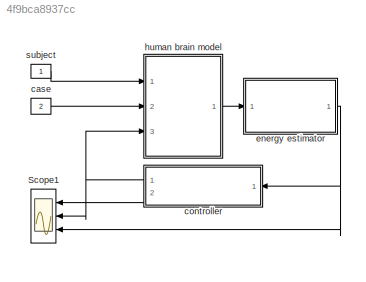
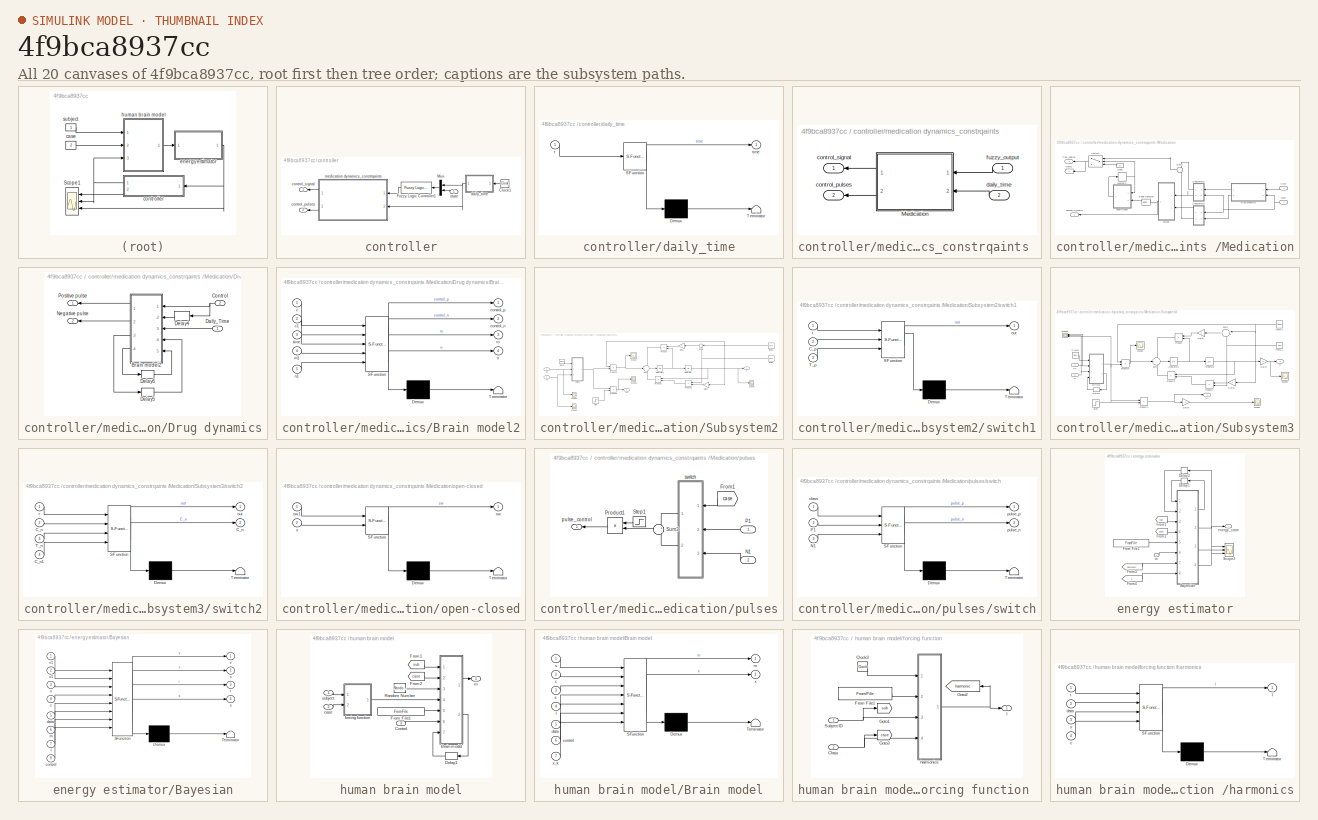
[diagram: thumbnail index - all 20 canvases of the model, root first then tree order]
MODEL slx_4f9bca8937cc
KIND model
CONFIG AbsTol = auto
CONFIG EnableMultiTasking = off
CONFIG FixedStep = 1
CONFIG MaxStep = auto
CONFIG MinStep = auto
CONFIG RelTol = 1e-3
CONFIG SampleTimeConstraint = Unconstrained
CONFIG Solver = FixedStepAuto
CONFIG SolverName = FixedStepAuto
CONFIG StartTime = 0.0
CONFIG StopTime = 7199
BLOCK [Scope] Scope1
  Floating = off
  NumInputPorts = 3
  Ports = [3]
  ScopeSpecificationString = Simulink.scopes.TimeScopeBlockCfg('CurrentConfiguration', extmgr.ConfigurationSet(extmgr.Configuration('Core','General UI',true),extmgr.Configuration('Core','Source UI',true),extmgr.Configuration('Sources','WiredSimulink',true,'DataLoggingVariableName','ScopeData2'),extmgr.Configuration('Visuals','Time Domain',true,'SerializedDisplays',{struct('MinYLimReal','-0.04405','MaxYLimReal','0.02395','YLab...<+3532ch>
BLOCK [Constant] case
  Value = 2
BLOCK [SubSystem] controller
  Ports = [1, 2]
  RequestExecContextInheritance = off
BLOCK [Clock] controller/Clock1
  Decimation = 10000
BLOCK [Reference] controller/Fuzzy Logic Controller1  REF=fuzblock/Fuzzy Logic   (lib defined in mdl_858b3b3e7478)
Controller
  Ports = [1, 1]
  SourceBlock = fuzblock/Fuzzy Logic \nController
  SourceProductBaseCode = FL
  SourceProductName = Fuzzy Logic Toolbox
  SourceType = Fuzzy Inference System
BLOCK [Mux] controller/Mux
  DisplayOption = bar
  Inputs = 2
  Ports = [2, 1]
BLOCK [Outport] controller/control_pulses
  IconDisplay = Port number
  Port = 2
  VectorParamsAs1DForOutWhenUnconnected = off
BLOCK [Outport] controller/control_signal
  IconDisplay = Port number
  VectorParamsAs1DForOutWhenUnconnected = off
BLOCK [SubSystem] controller/daily_time
  ErrorFcn = Stateflow.Translate.translate
  PermitHierarchicalResolution = ExplicitOnly
  Ports = [1, 1]
  RequestExecContextInheritance = off
  SFBlockType = MATLAB Function
  TreatAsAtomicUnit = on
BLOCK [Demux] controller/daily_time/ Demux 
  Outputs = 1
  Ports = [1, 1]
BLOCK [S-Function] controller/daily_time/ SFunction 
  EnableBusSupport = on
  FunctionName = sf_sfun
  PortCounts = [1 2]
  Ports = [1, 2]
  SFcnIsStateOwnerBlock = off
  SFunctionDeploymentMode = off
  Tag = Stateflow S-Function 15
BLOCK [Terminator] controller/daily_time/ Terminator 
BLOCK [Inport] controller/daily_time/t
  IconDisplay = Port number
BLOCK [Outport] controller/daily_time/time
  IconDisplay = Port number
  VectorParamsAs1DForOutWhenUnconnected = off
BLOCK [SubSystem] controller/medication dynamics_constrqaints 
  Ports = [2, 2]
  RequestExecContextInheritance = off
BLOCK [SubSystem] controller/medication dynamics_constrqaints /Medication
  Ports = [2, 2]
  RequestExecContextInheritance = off
BLOCK [SubSystem] controller/medication dynamics_constrqaints /Medication/Drug dynamics
  Ports = [2, 2]
  RequestExecContextInheritance = off
BLOCK [SubSystem] controller/medication dynamics_constrqaints /Medication/Drug dynamics/Brain model2
  ErrorFcn = Stateflow.Translate.translate
  PermitHierarchicalResolution = ExplicitOnly
  Ports = [5, 4]
  RequestExecContextInheritance = off
  SFBlockType = MATLAB Function
  TreatAsAtomicUnit = on
BLOCK [Demux] controller/medication dynamics_constrqaints /Medication/Drug dynamics/Brain model2/ Demux 
  Outputs = 1
  Ports = [1, 1]
BLOCK [S-Function] controller/medication dynamics_constrqaints /Medication/Drug dynamics/Brain model2/ SFunction 
  EnableBusSupport = on
  FunctionName = sf_sfun
  PortCounts = [5 5]
  Ports = [5, 5]
  SFcnIsStateOwnerBlock = off
  SFunctionDeploymentMode = off
  Tag = Stateflow S-Function 10
BLOCK [Terminator] controller/medication dynamics_constrqaints /Medication/Drug dynamics/Brain model2/ Terminator 
BLOCK [Inport] controller/medication dynamics_constrqaints /Medication/Drug dynamics/Brain model2/c
  IconDisplay = Port number
BLOCK [Inport] controller/medication dynamics_constrqaints /Medication/Drug dynamics/Brain model2/c1
  IconDisplay = Port number
  Port = 2
BLOCK [Outport] controller/medication dynamics_constrqaints /Medication/Drug dynamics/Brain model2/control_n
  IconDisplay = Port number
  Port = 2
BLOCK [Outport] controller/medication dynamics_constrqaints /Medication/Drug dynamics/Brain model2/control_p
  IconDisplay = Port number
BLOCK [Outport] controller/medication dynamics_constrqaints /Medication/Drug dynamics/Brain model2/m
  IconDisplay = Port number
  Port = 3
BLOCK [Inport] controller/medication dynamics_constrqaints /Medication/Drug dynamics/Brain model2/m1
  IconDisplay = Port number
  Port = 4
BLOCK [Outport] controller/medication dynamics_constrqaints /Medication/Drug dynamics/Brain model2/n
  IconDisplay = Port number
  Port = 4
BLOCK [Inport] controller/medication dynamics_constrqaints /Medication/Drug dynamics/Brain model2/n1
  IconDisplay = Port number
  Port = 5
BLOCK [Inport] controller/medication dynamics_constrqaints /Medication/Drug dynamics/Brain model2/time
  IconDisplay = Port number
  Port = 3
BLOCK [Inport] controller/medication dynamics_constrqaints /Medication/Drug dynamics/Control
  IconDisplay = Port number
  Port = 2
BLOCK [Inport] controller/medication dynamics_constrqaints /Medication/Drug dynamics/Daily_Time
  IconDisplay = Port number
BLOCK [Delay] controller/medication dynamics_constrqaints /Medication/Drug dynamics/Delay4
  DelayLength = 1
  InitialCondition = 0
  InputPortMap = u0
  Ports = [1, 1]
BLOCK [Delay] controller/medication dynamics_constrqaints /Medication/Drug dynamics/Delay5
  DelayLength = 1
  InitialCondition = 0
  InputPortMap = u0
  Ports = [1, 1]
BLOCK [Delay] controller/medication dynamics_constrqaints /Medication/Drug dynamics/Delay6
  DelayLength = 1
  InitialCondition = 0
  InputPortMap = u0
  Ports = [1, 1]
BLOCK [Outport] controller/medication dynamics_constrqaints /Medication/Drug dynamics/Negative pulse 
  IconDisplay = Port number
  Port = 2
  VectorParamsAs1DForOutWhenUnconnected = off
BLOCK [Outport] controller/medication dynamics_constrqaints /Medication/Drug dynamics/Positive pulse 
  IconDisplay = Port number
  VectorParamsAs1DForOutWhenUnconnected = off
BLOCK [Reference] controller/medication dynamics_constrqaints /Medication/Edge Detector  REF=powerlib_meascontrol/Logic/Edge Detector
  Ports = [1, 1]
  SourceBlock = powerlib_meascontrol/Logic/Edge Detector
  SourceProductBaseCode = PS
  SourceProductName = Simscape Electrical
  SourceType = Edge Detector
BLOCK [Goto] controller/medication dynamics_constrqaints /Medication/Goto1
  GotoTag = c
  TagVisibility = global
BLOCK [Memory] controller/medication dynamics_constrqaints /Medication/Memory1
BLOCK [Constant] controller/medication dynamics_constrqaints /Medication/Open
  Value = 0
BLOCK [SubSystem] controller/medication dynamics_constrqaints /Medication/Subsystem2
  Ports = [2, 2]
  RequestExecContextInheritance = off
BLOCK [Clock] controller/medication dynamics_constrqaints /Medication/Subsystem2/Clock2
  Decimation = 10000
BLOCK [Inport] controller/medication dynamics_constrqaints /Medication/Subsystem2/Cp
  IconDisplay = Port number
  Port = 2
BLOCK [Gain] controller/medication dynamics_constrqaints /Medication/Subsystem2/Gain1
  Gain = -1
  OutDataTypeStr = Inherit: Inherit via internal rule
  ParamDataTypeStr = Inherit: Inherit via internal rule
  SaturateOnIntegerOverflow = off
BLOCK [Gain] controller/medication dynamics_constrqaints /Medication/Subsystem2/Gain3
  Gain = -1
  OutDataTypeStr = Inherit: Inherit via internal rule
  ParamDataTypeStr = Inherit: Inherit via internal rule
  SaturateOnIntegerOverflow = off
BLOCK [Integrator] controller/medication dynamics_constrqaints /Medication/Subsystem2/Integrator
  Ports = [1, 1]
BLOCK [Integrator] controller/medication dynamics_constrqaints /Medication/Subsystem2/Integrator1
  Ports = [1, 1]
BLOCK [Outport] controller/medication dynamics_constrqaints /Medication/Subsystem2/P
  IconDisplay = Port number
  VectorParamsAs1DForOutWhenUnconnected = off
BLOCK [Outport] controller/medication dynamics_constrqaints /Medication/Subsystem2/P1
  IconDisplay = Port number
  Port = 2
  VectorParamsAs1DForOutWhenUnconnected = off
BLOCK [Product] controller/medication dynamics_constrqaints /Medication/Subsystem2/Product
  InputSameDT = off
  OutDataTypeStr = Inherit: Inherit via internal rule
  Ports = [2, 1]
  RndMeth = Floor
  SaturateOnIntegerOverflow = off
BLOCK [Product] controller/medication dynamics_constrqaints /Medication/Subsystem2/Product1
  InputSameDT = off
  OutDataTypeStr = Inherit: Inherit via internal rule
  Ports = [2, 1]
  RndMeth = Floor
  SaturateOnIntegerOverflow = off
BLOCK [Product] controller/medication dynamics_constrqaints /Medication/Subsystem2/Product2
  InputSameDT = off
  OutDataTypeStr = Inherit: Inherit via internal rule
  Ports = [2, 1]
  RndMeth = Floor
  SaturateOnIntegerOverflow = off
BLOCK [Product] controller/medication dynamics_constrqaints /Medication/Subsystem2/Product4
  InputSameDT = off
  OutDataTypeStr = Inherit: Inherit via internal rule
  Ports = [2, 1]
  RndMeth = Floor
  SaturateOnIntegerOverflow = off
BLOCK [Product] controller/medication dynamics_constrqaints /Medication/Subsystem2/Product5
  InputSameDT = off
  OutDataTypeStr = Inherit: Inherit via internal rule
  Ports = [2, 1]
  RndMeth = Floor
  SaturateOnIntegerOverflow = off
BLOCK [Scope] controller/medication dynamics_constrqaints /Medication/Subsystem2/Scope1
  Floating = off
  NumInputPorts = 1
  Ports = [1]
  ScopeSpecificationString = Simulink.scopes.TimeScopeBlockCfg('CurrentConfiguration', extmgr.ConfigurationSet(extmgr.Configuration('Core','General UI',true),extmgr.Configuration('Core','Source UI',true),extmgr.Configuration('Sources','WiredSimulink',true,'DataLoggingVariableName','ScopeData3'),extmgr.Configuration('Visuals','Time Domain',true,'SerializedDisplays',{struct('MinYLimReal','-0.00006','MaxYLimReal','0.00051','YLab...<+1364ch>
BLOCK [Scope] controller/medication dynamics_constrqaints /Medication/Subsystem2/Scope2
  Floating = off
  NumInputPorts = 1
  Ports = [1]
  ScopeSpecificationString = Simulink.scopes.TimeScopeBlockCfg('CurrentConfiguration', extmgr.ConfigurationSet(extmgr.Configuration('Core','General UI',true),extmgr.Configuration('Core','Source UI',true),extmgr.Configuration('Sources','WiredSimulink',true,'DataLoggingVariableName','ScopeData2'),extmgr.Configuration('Visuals','Time Domain',true,'SerializedDisplays',{struct('MinYLimReal','-0.02158','MaxYLimReal','0.06699','YLab...<+1981ch>
BLOCK [Scope] controller/medication dynamics_constrqaints /Medication/Subsystem2/Scope5
  Floating = off
  NumInputPorts = 1
  Ports = [1]
  ScopeSpecificationString = Simulink.scopes.TimeScopeBlockCfg('CurrentConfiguration', extmgr.ConfigurationSet(extmgr.Configuration('Core','General UI',true),extmgr.Configuration('Core','Source UI',true),extmgr.Configuration('Sources','WiredSimulink',true,'DataLoggingVariableName','ScopeData1'),extmgr.Configuration('Visuals','Time Domain',true,'SerializedDisplays',{struct('MinYLimReal','-0.00504','MaxYLimReal','0.04533','YLab...<+1983ch>
BLOCK [Scope] controller/medication dynamics_constrqaints /Medication/Subsystem2/Scope6
  Floating = off
  NumInputPorts = 1
  Ports = [1]
  ScopeSpecificationString = Simulink.scopes.TimeScopeBlockCfg('CurrentConfiguration', extmgr.ConfigurationSet(extmgr.Configuration('Core','General UI',true),extmgr.Configuration('Core','Source UI',true),extmgr.Configuration('Sources','WiredSimulink',true,'DataLoggingVariableName','ScopeData8'),extmgr.Configuration('Visuals','Time Domain',true,'SerializedDisplays',{struct('MinYLimReal','-30.125','MaxYLimReal','271.125','YLabe...<+1981ch>
BLOCK [Scope] controller/medication dynamics_constrqaints /Medication/Subsystem2/Scope7
  Floating = off
  NumInputPorts = 1
  Ports = [1]
  ScopeSpecificationString = Simulink.scopes.TimeScopeBlockCfg('CurrentConfiguration', extmgr.ConfigurationSet(extmgr.Configuration('Core','General UI',true),extmgr.Configuration('Core','Source UI',true),extmgr.Configuration('Sources','WiredSimulink',true,'DataLoggingVariableName','ScopeData12'),extmgr.Configuration('Visuals','Time Domain',true,'SerializedDisplays',{struct('MinYLimReal','-0.00052','MaxYLimReal','0.03575','YLa...<+1987ch>
BLOCK [Step] controller/medication dynamics_constrqaints /Medication/Subsystem2/Step
  SampleTime = 0
  Time = 2880
BLOCK [Sum] controller/medication dynamics_constrqaints /Medication/Subsystem2/Sum
  IconShape = round
  InputSameDT = off
  Inputs = +++
  OutDataTypeStr = Inherit: Inherit via internal rule
  Ports = [3, 1]
  SaturateOnIntegerOverflow = off
BLOCK [Sum] controller/medication dynamics_constrqaints /Medication/Subsystem2/Sum2
  IconShape = round
  InputSameDT = off
  Inputs = |++
  OutDataTypeStr = Inherit: Inherit via internal rule
  Ports = [2, 1]
  SaturateOnIntegerOverflow = off
BLOCK [Inport] controller/medication dynamics_constrqaints /Medication/Subsystem2/Tp
  IconDisplay = Port number
BLOCK [Constant] controller/medication dynamics_constrqaints /Medication/Subsystem2/\theta 1
  Value = 0.014
BLOCK [Constant] controller/medication dynamics_constrqaints /Medication/Subsystem2/\theta 2
  Value = 0.007
BLOCK [SubSystem] controller/medication dynamics_constrqaints /Medication/Subsystem2/switch1
  ErrorFcn = Stateflow.Translate.translate
  PermitHierarchicalResolution = ExplicitOnly
  Ports = [3, 1]
  RequestExecContextInheritance = off
  SFBlockType = MATLAB Function
  TreatAsAtomicUnit = on
BLOCK [Demux] controller/medication dynamics_constrqaints /Medication/Subsystem2/switch1/ Demux 
  Outputs = 1
  Ports = [1, 1]
BLOCK [S-Function] controller/medication dynamics_constrqaints /Medication/Subsystem2/switch1/ SFunction 
  EnableBusSupport = on
  FunctionName = sf_sfun
  PortCounts = [3 2]
  Ports = [3, 2]
  SFcnIsStateOwnerBlock = off
  SFunctionDeploymentMode = off
  Tag = Stateflow S-Function 6
BLOCK [Terminator] controller/medication dynamics_constrqaints /Medication/Subsystem2/switch1/ Terminator 
BLOCK [Inport] controller/medication dynamics_constrqaints /Medication/Subsystem2/switch1/C_p
  IconDisplay = Port number
  Port = 2
BLOCK [Inport] controller/medication dynamics_constrqaints /Medication/Subsystem2/switch1/T_p
  IconDisplay = Port number
  Port = 3
BLOCK [Outport] controller/medication dynamics_constrqaints /Medication/Subsystem2/switch1/out
  IconDisplay = Port number
  VectorParamsAs1DForOutWhenUnconnected = off
BLOCK [Inport] controller/medication dynamics_constrqaints /Medication/Subsystem2/switch1/t
  IconDisplay = Port number
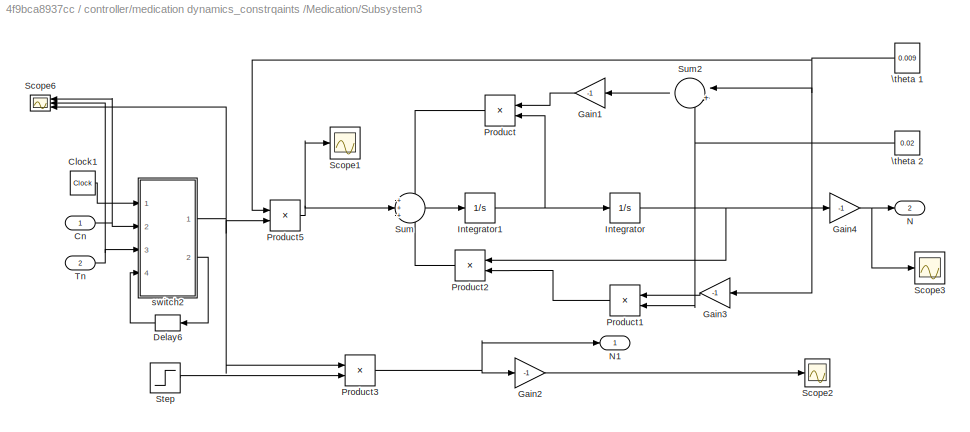
BLOCK [SubSystem] controller/medication dynamics_constrqaints /Medication/Subsystem3
  Ports = [2, 2]
  RequestExecContextInheritance = off
BLOCK [Clock] controller/medication dynamics_constrqaints /Medication/Subsystem3/Clock1
  Decimation = 10000
BLOCK [Inport] controller/medication dynamics_constrqaints /Medication/Subsystem3/Cn
  IconDisplay = Port number
BLOCK [Delay] controller/medication dynamics_constrqaints /Medication/Subsystem3/Delay6
  DelayLength = 1
  InitialCondition = 0
  InputPortMap = u0
  Ports = [1, 1]
BLOCK [Gain] controller/medication dynamics_constrqaints /Medication/Subsystem3/Gain1
  Gain = -1
  OutDataTypeStr = Inherit: Inherit via internal rule
  ParamDataTypeStr = Inherit: Inherit via internal rule
  SaturateOnIntegerOverflow = off
BLOCK [Gain] controller/medication dynamics_constrqaints /Medication/Subsystem3/Gain2
  Gain = -1
  OutDataTypeStr = Inherit: Inherit via internal rule
  ParamDataTypeStr = Inherit: Inherit via internal rule
  SaturateOnIntegerOverflow = off
BLOCK [Gain] controller/medication dynamics_constrqaints /Medication/Subsystem3/Gain3
  Gain = -1
  OutDataTypeStr = Inherit: Inherit via internal rule
  ParamDataTypeStr = Inherit: Inherit via internal rule
  SaturateOnIntegerOverflow = off
BLOCK [Gain] controller/medication dynamics_constrqaints /Medication/Subsystem3/Gain4
  Gain = -1
  OutDataTypeStr = Inherit: Inherit via internal rule
  ParamDataTypeStr = Inherit: Inherit via internal rule
  SaturateOnIntegerOverflow = off
BLOCK [Integrator] controller/medication dynamics_constrqaints /Medication/Subsystem3/Integrator
  Ports = [1, 1]
BLOCK [Integrator] controller/medication dynamics_constrqaints /Medication/Subsystem3/Integrator1
  InitialCondition = 0.00001
  Ports = [1, 1]
BLOCK [Outport] controller/medication dynamics_constrqaints /Medication/Subsystem3/N 
  IconDisplay = Port number
  Port = 2
  VectorParamsAs1DForOutWhenUnconnected = off
BLOCK [Outport] controller/medication dynamics_constrqaints /Medication/Subsystem3/N1
  IconDisplay = Port number
  VectorParamsAs1DForOutWhenUnconnected = off
BLOCK [Product] controller/medication dynamics_constrqaints /Medication/Subsystem3/Product
  InputSameDT = off
  OutDataTypeStr = Inherit: Inherit via internal rule
  Ports = [2, 1]
  RndMeth = Floor
  SaturateOnIntegerOverflow = off
BLOCK [Product] controller/medication dynamics_constrqaints /Medication/Subsystem3/Product1
  InputSameDT = off
  OutDataTypeStr = Inherit: Inherit via internal rule
  Ports = [2, 1]
  RndMeth = Floor
  SaturateOnIntegerOverflow = off
BLOCK [Product] controller/medication dynamics_constrqaints /Medication/Subsystem3/Product2
  InputSameDT = off
  OutDataTypeStr = Inherit: Inherit via internal rule
  Ports = [2, 1]
  RndMeth = Floor
  SaturateOnIntegerOverflow = off
BLOCK [Product] controller/medication dynamics_constrqaints /Medication/Subsystem3/Product3
  InputSameDT = off
  OutDataTypeStr = Inherit: Inherit via internal rule
  Ports = [2, 1]
  RndMeth = Floor
  SaturateOnIntegerOverflow = off
BLOCK [Product] controller/medication dynamics_constrqaints /Medication/Subsystem3/Product5
  InputSameDT = off
  OutDataTypeStr = Inherit: Inherit via internal rule
  Ports = [2, 1]
  RndMeth = Floor
  SaturateOnIntegerOverflow = off
BLOCK [Scope] controller/medication dynamics_constrqaints /Medication/Subsystem3/Scope1
  Floating = off
  NumInputPorts = 1
  Ports = [1]
  ScopeSpecificationString = Simulink.scopes.TimeScopeBlockCfg('CurrentConfiguration', extmgr.ConfigurationSet(extmgr.Configuration('Core','General UI',true),extmgr.Configuration('Core','Source UI',true),extmgr.Configuration('Sources','WiredSimulink',true,'DataLoggingVariableName','ScopeData3'),extmgr.Configuration('Visuals','Time Domain',true,'SerializedDisplays',{struct('MinYLimReal','-0.00003','MaxYLimReal','0.00024','YLab...<+1367ch>
BLOCK [Scope] controller/medication dynamics_constrqaints /Medication/Subsystem3/Scope2
  Floating = off
  NumInputPorts = 1
  Ports = [1]
  ScopeSpecificationString = Simulink.scopes.TimeScopeBlockCfg('CurrentConfiguration', extmgr.ConfigurationSet(extmgr.Configuration('Core','General UI',true),extmgr.Configuration('Core','Source UI',true),extmgr.Configuration('Sources','WiredSimulink',true,'DataLoggingVariableName','ScopeData1'),extmgr.Configuration('Visuals','Time Domain',true,'SerializedDisplays',{struct('MinYLimReal','-0.11993','MaxYLimReal','0.01332','YLab...<+1435ch>
BLOCK [Scope] controller/medication dynamics_constrqaints /Medication/Subsystem3/Scope3
  Floating = off
  NumInputPorts = 1
  Ports = [1]
  ScopeSpecificationString = Simulink.scopes.TimeScopeBlockCfg('CurrentConfiguration', extmgr.ConfigurationSet(extmgr.Configuration('Core','General UI',true),extmgr.Configuration('Core','Source UI',true),extmgr.Configuration('Sources','WiredSimulink',true,'DataLoggingVariableName','ScopeData13'),extmgr.Configuration('Visuals','Time Domain',true,'SerializedDisplays',{struct('MinYLimReal','-0.02808','MaxYLimReal','0.00312','YLa...<+1436ch>
BLOCK [Scope] controller/medication dynamics_constrqaints /Medication/Subsystem3/Scope6
  Floating = off
  NumInputPorts = 3
  Ports = [3]
  ScopeSpecificationString = Simulink.scopes.TimeScopeBlockCfg('CurrentConfiguration', extmgr.ConfigurationSet(extmgr.Configuration('Core','General UI',true),extmgr.Configuration('Core','Source UI',true),extmgr.Configuration('Sources','WiredSimulink',true,'DataLoggingVariableName','ScopeData2'),extmgr.Configuration('Visuals','Time Domain',true,'SerializedDisplays',{struct('MinYLimReal','-0.13225','MaxYLimReal','0.06125','YLab...<+3644ch>
BLOCK [Step] controller/medication dynamics_constrqaints /Medication/Subsystem3/Step
  SampleTime = 0
  Time = 2880
BLOCK [Sum] controller/medication dynamics_constrqaints /Medication/Subsystem3/Sum
  IconShape = round
  InputSameDT = off
  Inputs = +++
  OutDataTypeStr = Inherit: Inherit via internal rule
  Ports = [3, 1]
  SaturateOnIntegerOverflow = off
BLOCK [Sum] controller/medication dynamics_constrqaints /Medication/Subsystem3/Sum2
  IconShape = round
  InputSameDT = off
  Inputs = |++
  OutDataTypeStr = Inherit: Inherit via internal rule
  Ports = [2, 1]
  SaturateOnIntegerOverflow = off
BLOCK [Inport] controller/medication dynamics_constrqaints /Medication/Subsystem3/Tn
  IconDisplay = Port number
  Port = 2
BLOCK [Constant] controller/medication dynamics_constrqaints /Medication/Subsystem3/\theta 1
  Value = 0.009
BLOCK [Constant] controller/medication dynamics_constrqaints /Medication/Subsystem3/\theta 2
  Value = 0.02
BLOCK [SubSystem] controller/medication dynamics_constrqaints /Medication/Subsystem3/switch2
  ErrorFcn = Stateflow.Translate.translate
  PermitHierarchicalResolution = ExplicitOnly
  Ports = [4, 2]
  RequestExecContextInheritance = off
  SFBlockType = MATLAB Function
  TreatAsAtomicUnit = on
BLOCK [Demux] controller/medication dynamics_constrqaints /Medication/Subsystem3/switch2/ Demux 
  Outputs = 1
  Ports = [1, 1]
BLOCK [S-Function] controller/medication dynamics_constrqaints /Medication/Subsystem3/switch2/ SFunction 
  EnableBusSupport = on
  FunctionName = sf_sfun
  PortCounts = [4 3]
  Ports = [4, 3]
  SFcnIsStateOwnerBlock = off
  SFunctionDeploymentMode = off
  Tag = Stateflow S-Function 9
BLOCK [Terminator] controller/medication dynamics_constrqaints /Medication/Subsystem3/switch2/ Terminator 
BLOCK [Outport] controller/medication dynamics_constrqaints /Medication/Subsystem3/switch2/C_n
  IconDisplay = Port number
  Port = 2
BLOCK [Inport] controller/medication dynamics_constrqaints /Medication/Subsystem3/switch2/C_n 
  IconDisplay = Port number
  Port = 2
BLOCK [Inport] controller/medication dynamics_constrqaints /Medication/Subsystem3/switch2/C_n1
  IconDisplay = Port number
  Port = 4
BLOCK [Inport] controller/medication dynamics_constrqaints /Medication/Subsystem3/switch2/T_n
  IconDisplay = Port number
  Port = 3
BLOCK [Outport] controller/medication dynamics_constrqaints /Medication/Subsystem3/switch2/out
  IconDisplay = Port number
  VectorParamsAs1DForOutWhenUnconnected = off
BLOCK [Inport] controller/medication dynamics_constrqaints /Medication/Subsystem3/switch2/t
  IconDisplay = Port number
BLOCK [Sum] controller/medication dynamics_constrqaints /Medication/Sum1
  IconShape = round
  InputSameDT = off
  OutDataTypeStr = Inherit: Inherit via internal rule
  Ports = [2, 1]
  SaturateOnIntegerOverflow = off
BLOCK [Switch] controller/medication dynamics_constrqaints /Medication/Switch
  Criteria = u2 > Threshold
  InputSameDT = off
  SaturateOnIntegerOverflow = off
BLOCK [Outport] controller/medication dynamics_constrqaints /Medication/final_control
  IconDisplay = Port number
  VectorParamsAs1DForOutWhenUnconnected = off
BLOCK [Inport] controller/medication dynamics_constrqaints /Medication/fuzzy
  IconDisplay = Port number
BLOCK [SubSystem] controller/medication dynamics_constrqaints /Medication/open-closed
  ErrorFcn = Stateflow.Translate.translate
  PermitHierarchicalResolution = ExplicitOnly
  Ports = [2, 1]
  RequestExecContextInheritance = off
  SFBlockType = MATLAB Function
  TreatAsAtomicUnit = on
BLOCK [Demux] controller/medication dynamics_constrqaints /Medication/open-closed/ Demux 
  Outputs = 1
  Ports = [1, 1]
BLOCK [S-Function] controller/medication dynamics_constrqaints /Medication/open-closed/ SFunction 
  EnableBusSupport = on
  FunctionName = sf_sfun
  PortCounts = [2 2]
  Ports = [2, 2]
  SFcnIsStateOwnerBlock = off
  SFunctionDeploymentMode = off
  Tag = Stateflow S-Function 2
BLOCK [Terminator] controller/medication dynamics_constrqaints /Medication/open-closed/ Terminator 
BLOCK [Inport] controller/medication dynamics_constrqaints /Medication/open-closed/s
  IconDisplay = Port number
  Port = 2
BLOCK [Outport] controller/medication dynamics_constrqaints /Medication/open-closed/sw
  IconDisplay = Port number
  VectorParamsAs1DForOutWhenUnconnected = off
BLOCK [Inport] controller/medication dynamics_constrqaints /Medication/open-closed/sw1
  IconDisplay = Port number
BLOCK [Outport] controller/medication dynamics_constrqaints /Medication/pulsatile_control
  IconDisplay = Port number
  Port = 2
  VectorParamsAs1DForOutWhenUnconnected = off
BLOCK [SubSystem] controller/medication dynamics_constrqaints /Medication/pulses
  Ports = [2, 1]
  RequestExecContextInheritance = off
BLOCK [From] controller/medication dynamics_constrqaints /Medication/pulses/From1
  GotoTag = case
  TagVisibility = global
BLOCK [Inport] controller/medication dynamics_constrqaints /Medication/pulses/N1
  IconDisplay = Port number
  Port = 2
BLOCK [Inport] controller/medication dynamics_constrqaints /Medication/pulses/P1
  IconDisplay = Port number
BLOCK [Product] controller/medication dynamics_constrqaints /Medication/pulses/Product1
  InputSameDT = off
  OutDataTypeStr = Inherit: Inherit via internal rule
  Ports = [2, 1]
  RndMeth = Floor
  SaturateOnIntegerOverflow = off
BLOCK [Step] controller/medication dynamics_constrqaints /Medication/pulses/Step1
  SampleTime = 0
  Time = 2880
BLOCK [Sum] controller/medication dynamics_constrqaints /Medication/pulses/Sum3
  IconShape = round
  InputSameDT = off
  Inputs = +-
  OutDataTypeStr = Inherit: Inherit via internal rule
  Ports = [2, 1]
  SaturateOnIntegerOverflow = off
BLOCK [Outport] controller/medication dynamics_constrqaints /Medication/pulses/pulse_control
  IconDisplay = Port number
  VectorParamsAs1DForOutWhenUnconnected = off
BLOCK [SubSystem] controller/medication dynamics_constrqaints /Medication/pulses/switch
  ErrorFcn = Stateflow.Translate.translate
  PermitHierarchicalResolution = ExplicitOnly
  Ports = [3, 2]
  RequestExecContextInheritance = off
  SFBlockType = MATLAB Function
  TreatAsAtomicUnit = on
BLOCK [Demux] controller/medication dynamics_constrqaints /Medication/pulses/switch/ Demux 
  Outputs = 1
  Ports = [1, 1]
BLOCK [S-Function] controller/medication dynamics_constrqaints /Medication/pulses/switch/ SFunction 
  EnableBusSupport = on
  FunctionName = sf_sfun
  PortCounts = [3 3]
  Ports = [3, 3]
  SFcnIsStateOwnerBlock = off
  SFunctionDeploymentMode = off
  Tag = Stateflow S-Function 1
BLOCK [Terminator] controller/medication dynamics_constrqaints /Medication/pulses/switch/ Terminator 
BLOCK [Inport] controller/medication dynamics_constrqaints /Medication/pulses/switch/N1
  IconDisplay = Port number
  Port = 3
BLOCK [Inport] controller/medication dynamics_constrqaints /Medication/pulses/switch/P1
  IconDisplay = Port number
  Port = 2
BLOCK [Inport] controller/medication dynamics_constrqaints /Medication/pulses/switch/class
  IconDisplay = Port number
BLOCK [Outport] controller/medication dynamics_constrqaints /Medication/pulses/switch/pulse_n
  IconDisplay = Port number
  Port = 2
  VectorParamsAs1DForOutWhenUnconnected = off
BLOCK [Outport] controller/medication dynamics_constrqaints /Medication/pulses/switch/pulse_p
  IconDisplay = Port number
  VectorParamsAs1DForOutWhenUnconnected = off
BLOCK [Inport] controller/medication dynamics_constrqaints /Medication/time
  IconDisplay = Port number
  Port = 2
BLOCK [Outport] controller/medication dynamics_constrqaints /control_pulses
  IconDisplay = Port number
  Port = 2
  VectorParamsAs1DForOutWhenUnconnected = off
BLOCK [Outport] controller/medication dynamics_constrqaints /control_signal
  IconDisplay = Port number
  VectorParamsAs1DForOutWhenUnconnected = off
BLOCK [Inport] controller/medication dynamics_constrqaints /daily_time
  IconDisplay = Port number
  Port = 2
BLOCK [Inport] controller/medication dynamics_constrqaints /fuzzy_output
  IconDisplay = Port number
BLOCK [Inport] controller/state
  IconDisplay = Port number
BLOCK [SubSystem] energy estimator
  Ports = [1, 1]
  RequestExecContextInheritance = off
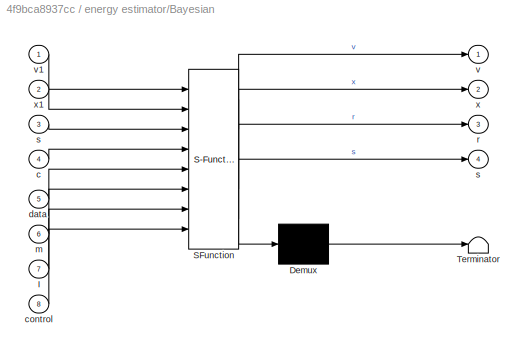
BLOCK [SubSystem] energy estimator/Bayesian
  ErrorFcn = Stateflow.Translate.translate
  PermitHierarchicalResolution = ExplicitOnly
  Ports = [8, 4]
  RequestExecContextInheritance = off
  SFBlockType = MATLAB Function
  TreatAsAtomicUnit = on
BLOCK [Demux] energy estimator/Bayesian/ Demux 
  Outputs = 1
  Ports = [1, 1]
BLOCK [S-Function] energy estimator/Bayesian/ SFunction 
  EnableBusSupport = on
  FunctionName = sf_sfun
  PortCounts = [8 5]
  Ports = [8, 5]
  SFcnIsStateOwnerBlock = off
  SFunctionDeploymentMode = off
  Tag = Stateflow S-Function 3
BLOCK [Terminator] energy estimator/Bayesian/ Terminator 
BLOCK [Inport] energy estimator/Bayesian/I
  IconDisplay = Port number
  Port = 7
BLOCK [Inport] energy estimator/Bayesian/c
  IconDisplay = Port number
  Port = 4
BLOCK [Inport] energy estimator/Bayesian/control
  IconDisplay = Port number
  Port = 8
BLOCK [Inport] energy estimator/Bayesian/data
  IconDisplay = Port number
  Port = 5
BLOCK [Inport] energy estimator/Bayesian/m
  IconDisplay = Port number
  Port = 6
BLOCK [Outport] energy estimator/Bayesian/r
  IconDisplay = Port number
  Port = 3
BLOCK [Outport] energy estimator/Bayesian/s
  IconDisplay = Port number
  Port = 4
BLOCK [Inport] energy estimator/Bayesian/s 
  IconDisplay = Port number
  Port = 3
BLOCK [Outport] energy estimator/Bayesian/v
  IconDisplay = Port number
BLOCK [Inport] energy estimator/Bayesian/v1
  IconDisplay = Port number
BLOCK [Outport] energy estimator/Bayesian/x
  IconDisplay = Port number
  Port = 2
BLOCK [Inport] energy estimator/Bayesian/x1
  IconDisplay = Port number
  Port = 2
BLOCK [Delay] energy estimator/Delay1
  DelayLength = 1
  InitialCondition = 0.0038
  InputPortMap = u0
  Ports = [1, 1]
BLOCK [Delay] energy estimator/Delay2
  DelayLength = 1
  InitialCondition = 0.21932
  InputPortMap = u0
  Ports = [1, 1]
BLOCK [FromFile] energy estimator/From File1
  FileName = parameters.mat
BLOCK [From] energy estimator/From1
  GotoTag = sub
  TagVisibility = global
BLOCK [From] energy estimator/From2
  GotoTag = case
  TagVisibility = global
BLOCK [From] energy estimator/From3
  GotoTag = harmonic
  TagVisibility = global
BLOCK [From] energy estimator/From4
  GotoTag = c
  TagVisibility = global
BLOCK [Scope] energy estimator/Scope3
  Floating = off
  NumInputPorts = 3
  Ports = [3]
  ScopeSpecificationString = Simulink.scopes.TimeScopeBlockCfg('CurrentConfiguration', extmgr.ConfigurationSet(extmgr.Configuration('Core','General UI',true),extmgr.Configuration('Core','Source UI',true),extmgr.Configuration('Sources','WiredSimulink',true,'DataLoggingVariableName','ScopeData1'),extmgr.Configuration('Visuals','Time Domain',true,'SerializedDisplays',{struct('MinYLimReal','7.72002','MaxYLimReal','13.60008','YLab...<+3519ch>
BLOCK [Outport] energy estimator/energy_state
  IconDisplay = Port number
  VectorParamsAs1DForOutWhenUnconnected = off
BLOCK [Inport] energy estimator/m
  IconDisplay = Port number
BLOCK [SubSystem] human brain model
  Ports = [3, 1]
  RequestExecContextInheritance = off
BLOCK [SubSystem] human brain model/Brain model
  ErrorFcn = Stateflow.Translate.translate
  PermitHierarchicalResolution = ExplicitOnly
  Ports = [7, 2]
  RequestExecContextInheritance = off
  SFBlockType = MATLAB Function
  TreatAsAtomicUnit = on
BLOCK [Demux] human brain model/Brain model/ Demux 
  Outputs = 1
  Ports = [1, 1]
BLOCK [S-Function] human brain model/Brain model/ SFunction 
  EnableBusSupport = on
  FunctionName = sf_sfun
  PortCounts = [7 3]
  Ports = [7, 3]
  SFcnIsStateOwnerBlock = off
  SFunctionDeploymentMode = off
  Tag = Stateflow S-Function 4
BLOCK [Terminator] human brain model/Brain model/ Terminator 
BLOCK [Inport] human brain model/Brain model/I
  IconDisplay = Port number
  Port = 4
BLOCK [Inport] human brain model/Brain model/c
  IconDisplay = Port number
  Port = 2
BLOCK [Inport] human brain model/Brain model/control
  IconDisplay = Port number
  Port = 6
BLOCK [Inport] human brain model/Brain model/data
  IconDisplay = Port number
  Port = 5
BLOCK [Inport] human brain model/Brain model/e
  IconDisplay = Port number
  Port = 3
BLOCK [Outport] human brain model/Brain model/m
  IconDisplay = Port number
BLOCK [Inport] human brain model/Brain model/s
  IconDisplay = Port number
BLOCK [Outport] human brain model/Brain model/x
  IconDisplay = Port number
  Port = 2
BLOCK [Inport] human brain model/Brain model/x_k
  IconDisplay = Port number
  Port = 7
BLOCK [Inport] human brain model/Control
  IconDisplay = Port number
  Port = 3
BLOCK [Delay] human brain model/Delay1
  DelayLength = 1
  InitialCondition = 0.21932
  InputPortMap = u0
  Ports = [1, 1]
BLOCK [FromFile] human brain model/From File1
  FileName = parameters.mat
BLOCK [From] human brain model/From1
  GotoTag = sub
  TagVisibility = global
BLOCK [From] human brain model/From2
  GotoTag = case
  TagVisibility = global
BLOCK [RandomNumber] human brain model/Random Number
  SampleTime = 1
  Seed = 50
  Variance = 0.0103
BLOCK [Inport] human brain model/case
  IconDisplay = Port number
  Port = 2
BLOCK [SubSystem] human brain model/forcing function 
  Ports = [2, 1]
  RequestExecContextInheritance = off
BLOCK [Inport] human brain model/forcing function /Class
  IconDisplay = Port number
  Port = 2
BLOCK [Clock] human brain model/forcing function /Clock3
  Decimation = 10000
BLOCK [FromFile] human brain model/forcing function /From File1
  FileName = harmonics_dictionary.mat
BLOCK [Goto] human brain model/forcing function /Goto1
  GotoTag = sub
  TagVisibility = global
BLOCK [Goto] human brain model/forcing function /Goto2
  GotoTag = harmonic
  TagVisibility = global
BLOCK [Goto] human brain model/forcing function /Goto3
  GotoTag = case
  TagVisibility = global
BLOCK [Outport] human brain model/forcing function /I
  IconDisplay = Port number
  VectorParamsAs1DForOutWhenUnconnected = off
BLOCK [Inport] human brain model/forcing function /Subject ID
  IconDisplay = Port number
BLOCK [SubSystem] human brain model/forcing function /harmonics
  ErrorFcn = Stateflow.Translate.translate
  PermitHierarchicalResolution = ExplicitOnly
  Ports = [4, 1]
  RequestExecContextInheritance = off
  SFBlockType = MATLAB Function
  TreatAsAtomicUnit = on
BLOCK [Demux] human brain model/forcing function /harmonics/ Demux 
  Outputs = 1
  Ports = [1, 1]
BLOCK [S-Function] human brain model/forcing function /harmonics/ SFunction 
  EnableBusSupport = on
  FunctionName = sf_sfun
  PortCounts = [4 2]
  Ports = [4, 2]
  SFcnIsStateOwnerBlock = off
  SFunctionDeploymentMode = off
  Tag = Stateflow S-Function 19
BLOCK [Terminator] human brain model/forcing function /harmonics/ Terminator 
BLOCK [Outport] human brain model/forcing function /harmonics/I
  IconDisplay = Port number
BLOCK [Inport] human brain model/forcing function /harmonics/c
  IconDisplay = Port number
  Port = 4
BLOCK [Inport] human brain model/forcing function /harmonics/data
  IconDisplay = Port number
  Port = 2
BLOCK [Inport] human brain model/forcing function /harmonics/s
  IconDisplay = Port number
  Port = 3
BLOCK [Inport] human brain model/forcing function /harmonics/t
  IconDisplay = Port number
BLOCK [Outport] human brain model/m
  IconDisplay = Port number
  VectorParamsAs1DForOutWhenUnconnected = off
BLOCK [Inport] human brain model/subject
  IconDisplay = Port number
BLOCK [Constant] subject 
LINE case:1 -> human brain model:2
LINE controller/Clock1:1 -> controller/daily_time:1
LINE controller/Fuzzy Logic Controller1:1 -> controller/medication dynamics_constrqaints :1
LINE controller/Mux:1 -> controller/Fuzzy Logic Controller1:1
NET controller/daily_time:1 -> controller/Mux:1, controller/medication dynamics_constrqaints :2
LINE controller/medication dynamics_constrqaints /Medication/Drug dynamics/Brain model2:1 -> controller/medication dynamics_constrqaints /Medication/Drug dynamics/Positive pulse :1
LINE controller/medication dynamics_constrqaints /Medication/Drug dynamics/Brain model2:2 -> controller/medication dynamics_constrqaints /Medication/Drug dynamics/Negative pulse :1
LINE controller/medication dynamics_constrqaints /Medication/Drug dynamics/Brain model2:3 -> controller/medication dynamics_constrqaints /Medication/Drug dynamics/Delay5:1
LINE controller/medication dynamics_constrqaints /Medication/Drug dynamics/Brain model2:4 -> controller/medication dynamics_constrqaints /Medication/Drug dynamics/Delay6:1
NET controller/medication dynamics_constrqaints /Medication/Drug dynamics/Control:1 -> controller/medication dynamics_constrqaints /Medication/Drug dynamics/Brain model2:1, controller/medication dynamics_constrqaints /Medication/Drug dynamics/Delay4:1
LINE controller/medication dynamics_constrqaints /Medication/Drug dynamics/Daily_Time:1 -> controller/medication dynamics_constrqaints /Medication/Drug dynamics/Brain model2:3
LINE controller/medication dynamics_constrqaints /Medication/Drug dynamics/Delay4:1 -> controller/medication dynamics_constrqaints /Medication/Drug dynamics/Brain model2:2
LINE controller/medication dynamics_constrqaints /Medication/Drug dynamics/Delay5:1 -> controller/medication dynamics_constrqaints /Medication/Drug dynamics/Brain model2:4
LINE controller/medication dynamics_constrqaints /Medication/Drug dynamics/Delay6:1 -> controller/medication dynamics_constrqaints /Medication/Drug dynamics/Brain model2:5
LINE controller/medication dynamics_constrqaints /Medication/Drug dynamics:1 -> controller/medication dynamics_constrqaints /Medication/Subsystem2:1
LINE controller/medication dynamics_constrqaints /Medication/Drug dynamics:2 -> controller/medication dynamics_constrqaints /Medication/Subsystem3:2
LINE controller/medication dynamics_constrqaints /Medication/Edge Detector:1 -> controller/medication dynamics_constrqaints /Medication/open-closed:2
NET controller/medication dynamics_constrqaints /Medication/Memory1:1 -> controller/medication dynamics_constrqaints /Medication/Switch:2, controller/medication dynamics_constrqaints /Medication/open-closed:1
LINE controller/medication dynamics_constrqaints /Medication/Open:1 -> controller/medication dynamics_constrqaints /Medication/Switch:3
LINE controller/medication dynamics_constrqaints /Medication/Subsystem2/Clock2:1 -> controller/medication dynamics_constrqaints /Medication/Subsystem2/switch1:1
NET controller/medication dynamics_constrqaints /Medication/Subsystem2/Cp:1 -> controller/medication dynamics_constrqaints /Medication/Subsystem2/Scope2:1, controller/medication dynamics_constrqaints /Medication/Subsystem2/switch1:2
LINE controller/medication dynamics_constrqaints /Medication/Subsystem2/Gain1:1 -> controller/medication dynamics_constrqaints /Medication/Subsystem2/Product:1
LINE controller/medication dynamics_constrqaints /Medication/Subsystem2/Gain3:1 -> controller/medication dynamics_constrqaints /Medication/Subsystem2/Product1:2
NET controller/medication dynamics_constrqaints /Medication/Subsystem2/Integrator1:1 -> controller/medication dynamics_constrqaints /Medication/Subsystem2/Integrator:1, controller/medication dynamics_constrqaints /Medication/Subsystem2/Product:2
NET controller/medication dynamics_constrqaints /Medication/Subsystem2/Integrator:1 -> controller/medication dynamics_constrqaints /Medication/Subsystem2/P:1, controller/medication dynamics_constrqaints /Medication/Subsystem2/Product2:1, controller/medication dynamics_constrqaints /Medication/Subsystem2/Scope7:1
LINE controller/medication dynamics_constrqaints /Medication/Subsystem2/Product1:1 -> controller/medication dynamics_constrqaints /Medication/Subsystem2/Product2:2
LINE controller/medication dynamics_constrqaints /Medication/Subsystem2/Product2:1 -> controller/medication dynamics_constrqaints /Medication/Subsystem2/Sum:3
NET controller/medication dynamics_constrqaints /Medication/Subsystem2/Product4:1 -> controller/medication dynamics_constrqaints /Medication/Subsystem2/Scope1:1, controller/medication dynamics_constrqaints /Medication/Subsystem2/Sum:2
NET controller/medication dynamics_constrqaints /Medication/Subsystem2/Product5:1 -> controller/medication dynamics_constrqaints /Medication/Subsystem2/P1:1, controller/medication dynamics_constrqaints /Medication/Subsystem2/Scope5:1
LINE controller/medication dynamics_constrqaints /Medication/Subsystem2/Product:1 -> controller/medication dynamics_constrqaints /Medication/Subsystem2/Sum:1
LINE controller/medication dynamics_constrqaints /Medication/Subsystem2/Step:1 -> controller/medication dynamics_constrqaints /Medication/Subsystem2/Product5:2
LINE controller/medication dynamics_constrqaints /Medication/Subsystem2/Sum2:1 -> controller/medication dynamics_constrqaints /Medication/Subsystem2/Gain1:1
LINE controller/medication dynamics_constrqaints /Medication/Subsystem2/Sum:1 -> controller/medication dynamics_constrqaints /Medication/Subsystem2/Integrator1:1
NET controller/medication dynamics_constrqaints /Medication/Subsystem2/Tp:1 -> controller/medication dynamics_constrqaints /Medication/Subsystem2/Scope6:1, controller/medication dynamics_constrqaints /Medication/Subsystem2/switch1:3
NET controller/medication dynamics_constrqaints /Medication/Subsystem2/\theta 1:1 -> controller/medication dynamics_constrqaints /Medication/Subsystem2/Gain3:1, controller/medication dynamics_constrqaints /Medication/Subsystem2/Product4:1, controller/medication dynamics_constrqaints /Medication/Subsystem2/Sum2:1
NET controller/medication dynamics_constrqaints /Medication/Subsystem2/\theta 2:1 -> controller/medication dynamics_constrqaints /Medication/Subsystem2/Product1:1, controller/medication dynamics_constrqaints /Medication/Subsystem2/Sum2:2
NET controller/medication dynamics_constrqaints /Medication/Subsystem2/switch1:1 -> controller/medication dynamics_constrqaints /Medication/Subsystem2/Product4:2, controller/medication dynamics_constrqaints /Medication/Subsystem2/Product5:1
LINE controller/medication dynamics_constrqaints /Medication/Subsystem2:1 -> controller/medication dynamics_constrqaints /Medication/Sum1:1
LINE controller/medication dynamics_constrqaints /Medication/Subsystem2:2 -> controller/medication dynamics_constrqaints /Medication/pulses:1
LINE controller/medication dynamics_constrqaints /Medication/Subsystem3/Clock1:1 -> controller/medication dynamics_constrqaints /Medication/Subsystem3/switch2:1
NET controller/medication dynamics_constrqaints /Medication/Subsystem3/Cn:1 -> controller/medication dynamics_constrqaints /Medication/Subsystem3/Scope6:1, controller/medication dynamics_constrqaints /Medication/Subsystem3/switch2:2
LINE controller/medication dynamics_constrqaints /Medication/Subsystem3/Delay6:1 -> controller/medication dynamics_constrqaints /Medication/Subsystem3/switch2:4
LINE controller/medication dynamics_constrqaints /Medication/Subsystem3/Gain1:1 -> controller/medication dynamics_constrqaints /Medication/Subsystem3/Product:1
LINE controller/medication dynamics_constrqaints /Medication/Subsystem3/Gain2:1 -> controller/medication dynamics_constrqaints /Medication/Subsystem3/Scope2:1
LINE controller/medication dynamics_constrqaints /Medication/Subsystem3/Gain3:1 -> controller/medication dynamics_constrqaints /Medication/Subsystem3/Product1:1
NET controller/medication dynamics_constrqaints /Medication/Subsystem3/Gain4:1 -> controller/medication dynamics_constrqaints /Medication/Subsystem3/N :1, controller/medication dynamics_constrqaints /Medication/Subsystem3/Scope3:1
NET controller/medication dynamics_constrqaints /Medication/Subsystem3/Integrator1:1 -> controller/medication dynamics_constrqaints /Medication/Subsystem3/Integrator:1, controller/medication dynamics_constrqaints /Medication/Subsystem3/Product:2
NET controller/medication dynamics_constrqaints /Medication/Subsystem3/Integrator:1 -> controller/medication dynamics_constrqaints /Medication/Subsystem3/Gain4:1, controller/medication dynamics_constrqaints /Medication/Subsystem3/Product2:1
LINE controller/medication dynamics_constrqaints /Medication/Subsystem3/Product1:1 -> controller/medication dynamics_constrqaints /Medication/Subsystem3/Product2:2
LINE controller/medication dynamics_constrqaints /Medication/Subsystem3/Product2:1 -> controller/medication dynamics_constrqaints /Medication/Subsystem3/Sum:3
NET controller/medication dynamics_constrqaints /Medication/Subsystem3/Product3:1 -> controller/medication dynamics_constrqaints /Medication/Subsystem3/Gain2:1, controller/medication dynamics_constrqaints /Medication/Subsystem3/N1:1
NET controller/medication dynamics_constrqaints /Medication/Subsystem3/Product5:1 -> controller/medication dynamics_constrqaints /Medication/Subsystem3/Scope1:1, controller/medication dynamics_constrqaints /Medication/Subsystem3/Sum:2
LINE controller/medication dynamics_constrqaints /Medication/Subsystem3/Product:1 -> controller/medication dynamics_constrqaints /Medication/Subsystem3/Sum:1
LINE controller/medication dynamics_constrqaints /Medication/Subsystem3/Step:1 -> controller/medication dynamics_constrqaints /Medication/Subsystem3/Product3:2
LINE controller/medication dynamics_constrqaints /Medication/Subsystem3/Sum2:1 -> controller/medication dynamics_constrqaints /Medication/Subsystem3/Gain1:1
LINE controller/medication dynamics_constrqaints /Medication/Subsystem3/Sum:1 -> controller/medication dynamics_constrqaints /Medication/Subsystem3/Integrator1:1
NET controller/medication dynamics_constrqaints /Medication/Subsystem3/Tn:1 -> controller/medication dynamics_constrqaints /Medication/Subsystem3/Scope6:2, controller/medication dynamics_constrqaints /Medication/Subsystem3/switch2:3
NET controller/medication dynamics_constrqaints /Medication/Subsystem3/\theta 1:1 -> controller/medication dynamics_constrqaints /Medication/Subsystem3/Gain3:1, controller/medication dynamics_constrqaints /Medication/Subsystem3/Product5:1, controller/medication dynamics_constrqaints /Medication/Subsystem3/Sum2:1
NET controller/medication dynamics_constrqaints /Medication/Subsystem3/\theta 2:1 -> controller/medication dynamics_constrqaints /Medication/Subsystem3/Product1:2, controller/medication dynamics_constrqaints /Medication/Subsystem3/Sum2:2
NET controller/medication dynamics_constrqaints /Medication/Subsystem3/switch2:1 -> controller/medication dynamics_constrqaints /Medication/Subsystem3/Product3:1, controller/medication dynamics_constrqaints /Medication/Subsystem3/Product5:2, controller/medication dynamics_constrqaints /Medication/Subsystem3/Scope6:3
LINE controller/medication dynamics_constrqaints /Medication/Subsystem3/switch2:2 -> controller/medication dynamics_constrqaints /Medication/Subsystem3/Delay6:1
LINE controller/medication dynamics_constrqaints /Medication/Subsystem3:1 -> controller/medication dynamics_constrqaints /Medication/pulses:2
LINE controller/medication dynamics_constrqaints /Medication/Subsystem3:2 -> controller/medication dynamics_constrqaints /Medication/Sum1:2
LINE controller/medication dynamics_constrqaints /Medication/Sum1:1 -> controller/medication dynamics_constrqaints /Medication/Switch:1
NET controller/medication dynamics_constrqaints /Medication/Switch:1 -> controller/medication dynamics_constrqaints /Medication/Goto1:1, controller/medication dynamics_constrqaints /Medication/final_control:1
NET controller/medication dynamics_constrqaints /Medication/fuzzy:1 -> controller/medication dynamics_constrqaints /Medication/Drug dynamics:2, controller/medication dynamics_constrqaints /Medication/Subsystem2:2, controller/medication dynamics_constrqaints /Medication/Subsystem3:1
LINE controller/medication dynamics_constrqaints /Medication/open-closed:1 -> controller/medication dynamics_constrqaints /Medication/Memory1:1
LINE controller/medication dynamics_constrqaints /Medication/pulses/From1:1 -> controller/medication dynamics_constrqaints /Medication/pulses/switch:1
LINE controller/medication dynamics_constrqaints /Medication/pulses/N1:1 -> controller/medication dynamics_constrqaints /Medication/pulses/switch:3
LINE controller/medication dynamics_constrqaints /Medication/pulses/P1:1 -> controller/medication dynamics_constrqaints /Medication/pulses/switch:2
LINE controller/medication dynamics_constrqaints /Medication/pulses/Product1:1 -> controller/medication dynamics_constrqaints /Medication/pulses/pulse_control:1
LINE controller/medication dynamics_constrqaints /Medication/pulses/Step1:1 -> controller/medication dynamics_constrqaints /Medication/pulses/Product1:1
LINE controller/medication dynamics_constrqaints /Medication/pulses/Sum3:1 -> controller/medication dynamics_constrqaints /Medication/pulses/Product1:2
LINE controller/medication dynamics_constrqaints /Medication/pulses/switch:1 -> controller/medication dynamics_constrqaints /Medication/pulses/Sum3:1
LINE controller/medication dynamics_constrqaints /Medication/pulses/switch:2 -> controller/medication dynamics_constrqaints /Medication/pulses/Sum3:2
NET controller/medication dynamics_constrqaints /Medication/pulses:1 -> controller/medication dynamics_constrqaints /Medication/Edge Detector:1, controller/medication dynamics_constrqaints /Medication/pulsatile_control:1
LINE controller/medication dynamics_constrqaints /Medication/time:1 -> controller/medication dynamics_constrqaints /Medication/Drug dynamics:1
LINE controller/medication dynamics_constrqaints /Medication:1 -> controller/medication dynamics_constrqaints /control_signal:1
LINE controller/medication dynamics_constrqaints /Medication:2 -> controller/medication dynamics_constrqaints /control_pulses:1
LINE controller/medication dynamics_constrqaints /daily_time:1 -> controller/medication dynamics_constrqaints /Medication:2
LINE controller/medication dynamics_constrqaints /fuzzy_output:1 -> controller/medication dynamics_constrqaints /Medication:1
LINE controller/medication dynamics_constrqaints :1 -> controller/control_signal:1
LINE controller/medication dynamics_constrqaints :2 -> controller/control_pulses:1
LINE controller/state:1 -> controller/Mux:2
NET controller:1 -> Scope1:2, human brain model:3
LINE controller:2 -> Scope1:1
LINE energy estimator/Bayesian:1 -> energy estimator/Delay1:1
NET energy estimator/Bayesian:2 -> energy estimator/Delay2:1, energy estimator/Scope3:1, energy estimator/energy_state:1
LINE energy estimator/Bayesian:3 -> energy estimator/Scope3:2
LINE energy estimator/Bayesian:4 -> energy estimator/Scope3:3
LINE energy estimator/Delay1:1 -> energy estimator/Bayesian:1
LINE energy estimator/Delay2:1 -> energy estimator/Bayesian:2
LINE energy estimator/From File1:1 -> energy estimator/Bayesian:5
LINE energy estimator/From1:1 -> energy estimator/Bayesian:3
LINE energy estimator/From2:1 -> energy estimator/Bayesian:4
LINE energy estimator/From3:1 -> energy estimator/Bayesian:7
LINE energy estimator/From4:1 -> energy estimator/Bayesian:8
LINE energy estimator/m:1 -> energy estimator/Bayesian:6
NET energy estimator:1 -> Scope1:3, controller:1
LINE human brain model/Brain model:1 -> human brain model/m:1
LINE human brain model/Brain model:2 -> human brain model/Delay1:1
LINE human brain model/Control:1 -> human brain model/Brain model:6
LINE human brain model/Delay1:1 -> human brain model/Brain model:7
LINE human brain model/From File1:1 -> human brain model/Brain model:5
LINE human brain model/From1:1 -> human brain model/Brain model:1
LINE human brain model/From2:1 -> human brain model/Brain model:2
LINE human brain model/Random Number:1 -> human brain model/Brain model:3
LINE human brain model/case:1 -> human brain model/forcing function :2
NET human brain model/forcing function /Class:1 -> human brain model/forcing function /Goto3:1, human brain model/forcing function /harmonics:4
LINE human brain model/forcing function /Clock3:1 -> human brain model/forcing function /harmonics:1
LINE human brain model/forcing function /From File1:1 -> human brain model/forcing function /harmonics:2
NET human brain model/forcing function /Subject ID:1 -> human brain model/forcing function /Goto1:1, human brain model/forcing function /harmonics:3
NET human brain model/forcing function /harmonics:1 -> human brain model/forcing function /Goto2:1, human brain model/forcing function /I:1
LINE human brain model/forcing function :1 -> human brain model/Brain model:4
LINE human brain model/subject:1 -> human brain model/forcing function :1
LINE human brain model:1 -> energy estimator:1
LINE subject :1 -> human brain model:1
note: NET lines group one-source signal fan-out (src -> all destinations, sorted); 1:1 wires keep LINE
CHART controller/medication dynamics_constrqaints /Medication/pulses/switch states=1 transitions=1
  STATE_LABEL 'eML_blk_kernel()'
  STATE_LABEL 'SCRIPT:\nfunction [pulse_p,pulse_n]  = fcn(class,P1,N1)\n\nif class == 1\n    pulse_p = 0;\n    pulse_n = 0;\nelse\n    pulse_p = P1;\n    pulse_n = N1;\nend\nend\n'
CHART controller/medication dynamics_constrqaints /Medication/open-closed states=1 transitions=1
  STATE_LABEL 'eML_blk_kernel()'
  STATE_LABEL 'SCRIPT:\nfunction sw  = fcn(sw1,s)\n\nsw = s + sw1;\n\n\nend\n'
CHART energy estimator/Bayesian states=1 transitions=1
  STATE_LABEL 'eML_blk_kernel()'
  STATE_LABEL 'SCRIPT:\nfunction [v,x,r,s]=fcn(v1,x1,s,c,data,m,I,control)\ni = 3*(s-1) + c;\nparam = data(11*(i-1)+1:11*(i));  %%%% using the estimated model parametrs as a results of oofline EM algorithm \n\n%%% make sure to use the corresponding model parametrs in the initial condittion x_0 and v_0\n\n% param(---,:) = \n% 1-[x0 ;\n% 2-ve ;\n% 3-rho ;\n% 4-r0 ;\n% 5-r1 ;\n% 6-vr ;\n% 7-s0 ;\n% 8-s1 ;\n% 9-vs ;\n% 10-b0 ;\n% 11-...<+1104ch>'
CHART human brain model/Brain model states=1 transitions=1
  STATE_LABEL 'eML_blk_kernel()'
  STATE_LABEL 'SCRIPT:\nfunction [m,x] = fcn(s,c,e,I, data,control,x_k)\ni = 3*(s-1) + c;\nparam = data(11*(i-1)+1:11*(i)); %%%% using the estimated model parametrs as a results of oofline EM algorithm \n\n%%% make sure to use the corresponding model parametrs in the initial condittion x_0\n\n% param(---,:) = \n% 1-[x0 ;\n% 2-ve ;\n% 3-rho ;\n% 4-r0 ;\n% 5-r1 ;\n% 6-vr ;\n% 7-s0 ;\n% 8-s1 ;\n% 9-vs ;\n% 10-b0 ;\n% 11-b1 ]\n\nx0 =pa...<+224ch>'
CHART controller/medication dynamics_constrqaints /Medication/Subsystem2/switch1 states=1 transitions=1
  STATE_LABEL 'eML_blk_kernel()'
  STATE_LABEL 'SCRIPT:\nfunction out  = fcn(t,C_p,T_p)\nT = 1440; \nn = floor(t/T);\n\ncc =  0;\n\n\nif T_p >0\n%  if  t > T_p + n*T && t< T_p + 3 + n*T\n    cc  = 1;\nelse \n    cc = 0 ;\nend\n\nout = C_p*cc;\n\n\nend\n'
CHART controller/medication dynamics_constrqaints /Medication/Subsystem3/switch2 states=1 transitions=1
  STATE_LABEL 'eML_blk_kernel()'
  STATE_LABEL 'SCRIPT:\nfunction [out,C_n]  = fcn(t,C_n,T_n,C_n1)\nT = 1440; \nn = floor(t/T);\n% control = C_n - C_n1;%%%%%%%%\ncc =  0;\nif T_n >0\n% if  t == T_n + n*T \n% if  t > T_n + n*T && t< T_n + 2  + n*T\n    cc  = 1;\nelse \n    cc = 0 ;\nend\nif C_n <0\n    \n    C_n = -1*C_n;\n    C_n1 = -1*C_n1;\n    \nend \n% out = C_n*cc;\nout = (C_n - C_n1)*cc;\n\n\nend\n'
CHART controller/medication dynamics_constrqaints /Medication/Drug dynamics/Brain model2 states=1 transitions=1
  STATE_LABEL 'eML_blk_kernel()'
  STATE_LABEL 'SCRIPT:\nfunction [control_p,control_n,m,n] = fcn(c,c1,time,m1,n1)\nc_time = c-c1;\ncontrol = c_time;\nx = control;\ny = control;\n\n%%% Negative pulses\n\ncontrol_n = 0;\nif y > - 0.01\n    y = 0;\nend\n\nif y<0 && time > 17 %%%% 12 for sub = 5  and 17 for others \n    n = n1+1;\n    control_n = c;\nelse\n    n = n1+ 0 ;\nend\n\nif n > 1 && time < 23.97 \n    control_n = 0;\nend\ncontrol_n = -1*control_n;\n\n%%% Postive p...<+228ch>'
CHART controller/daily_time states=1 transitions=1
  STATE_LABEL 'eML_blk_kernel()'
  STATE_LABEL 'SCRIPT:\nfunction time    = fcn(t)\nT_day = 1440; \n\nT_s = floor(t/T_day)*T_day; \ntime = t - T_s;\ntime = time /60;\nend\n'
CHART human brain model/forcing function /harmonics states=1 transitions=1
  STATE_LABEL 'eML_blk_kernel()'
  STATE_LABEL 'SCRIPT:\nfunction I = fcn(t,data,s,c)\n\nT = 1440;\n\n%%% Directory for the harmonic function I_k\ni = 3*(s-1) + c;  %%% s: subject (1:10) , c:class (1:3)\nparam = data(5*(i-1)+1:5*(i));\n    % param(---,:) = \n    % 1-[a0 ;\n    % 2-a1 ;\n    % 3-b1 ;\n    % 4-a2 ;\n    % 5-b2 ;]\n\na0 = param(1); a1 = param(2); b1 = param(3); a2 = param(4); b2 = param(5);\n  \nI = a0 + a1 * sin(2 * pi * t / T) + b1 * cos(2 * pi ...<+92ch>'
